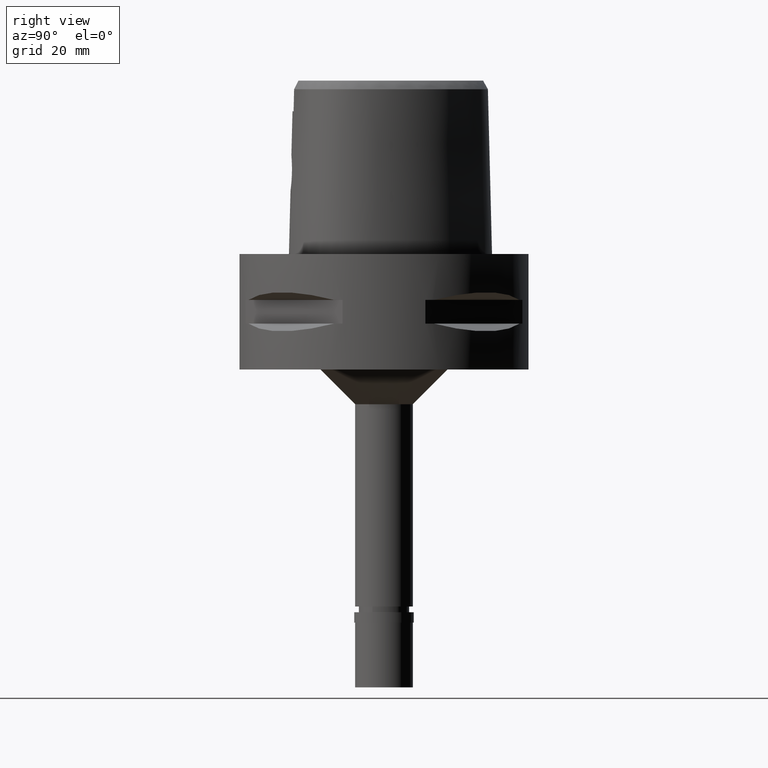
[diagram: clean part render]
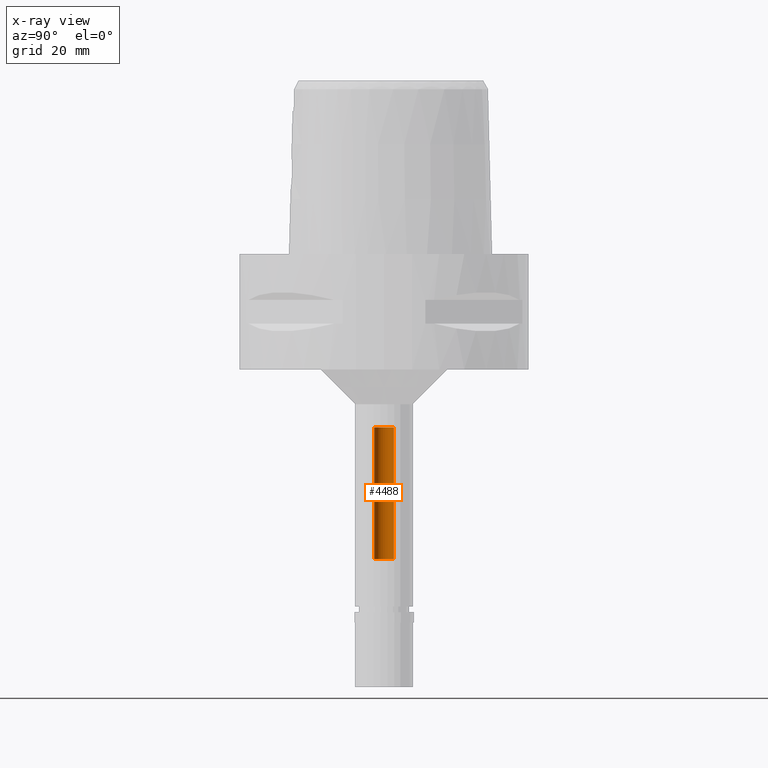
[diagram: x-ray — body ghosted, one internal face saturated and labeled with its STEP entity id]
A machine part, right view, then the same camera in x-ray: the body is ghosted and one INTERNAL B-rep face — a face not visible from any outside direction — is saturated and labeled: STEP entity #4488.
In plain terms, the highlighted cylindrical surface (edge-blend (fillet) strip) has radius 1.7 mm, axis along (0, 0, -1).
Its self-contained STEP definition (entity closure, byte-faithful):
#10 = CARTESIAN_POINT ( 'NONE',  ( 0.0000000000000000000, -1.699999999999999956, -52.79999999999999716 ) ) ;
#11 = ORIENTED_EDGE ( 'NONE', *, *, #773, .T. ) ;
#221 = FACE_OUTER_BOUND ( 'NONE', #4327, .T. ) ;
#374 = LINE ( 'NONE', #10, #4174 ) ;
#380 = DIRECTION ( 'NONE',  ( 0.0000000000000000000, 0.0000000000000000000, 1.000000000000000000 ) ) ;
#410 = AXIS2_PLACEMENT_3D ( 'NONE', #3176, #380, #4186 ) ;
#585 = CARTESIAN_POINT ( 'NONE',  ( 0.0000000000000000000, 1.699999999999999956, -52.79999999999999716 ) ) ;
#644 = CARTESIAN_POINT ( 'NONE',  ( 0.0000000000000000000, 1.699999999999999956, -52.79999999999999716 ) ) ;
#663 = CYLINDRICAL_SURFACE ( 'NONE', #3408, 1.699999999999999956 ) ;
#720 = EDGE_CURVE ( 'NONE', #3317, #2343, #374, .T. ) ;
#773 = EDGE_CURVE ( 'NONE', #3317, #4383, #1122, .T. ) ;
#1122 = CIRCLE ( 'NONE', #3863, 1.699999999999999956 ) ;
#1430 = DIRECTION ( 'NONE',  ( 0.0000000000000000000, -1.000000000000000000, 0.0000000000000000000 ) ) ;
#1553 = CARTESIAN_POINT ( 'NONE',  ( 0.0000000000000000000, -1.699999999999999956, -52.79999999999999716 ) ) ;
#1695 = CARTESIAN_POINT ( 'NONE',  ( 0.0000000000000000000, 1.699999999999999956, -30.00000000000000000 ) ) ;
#1777 = EDGE_CURVE ( 'NONE', #4383, #3653, #3672, .T. ) ;
#2262 = DIRECTION ( 'NONE',  ( 0.0000000000000000000, -1.000000000000000000, 0.0000000000000000000 ) ) ;
#2277 = CARTESIAN_POINT ( 'NONE',  ( 0.0000000000000000000, -1.699999999999999956, -30.00000000000000000 ) ) ;
#2343 = VERTEX_POINT ( 'NONE', #2277 ) ;
#2650 = DIRECTION ( 'NONE',  ( 0.0000000000000000000, 0.0000000000000000000, -1.000000000000000000 ) ) ;
#2718 = EDGE_CURVE ( 'NONE', #3653, #2343, #3630, .T. ) ;
#2949 = DIRECTION ( 'NONE',  ( 0.0000000000000000000, 0.0000000000000000000, -1.000000000000000000 ) ) ;
#3176 = CARTESIAN_POINT ( 'NONE',  ( 0.0000000000000000000, 1.268305457536999868E-14, -30.00000000000000000 ) ) ;
#3293 = DIRECTION ( 'NONE',  ( 0.0000000000000000000, 0.0000000000000000000, 1.000000000000000000 ) ) ;
#3317 = VERTEX_POINT ( 'NONE', #1553 ) ;
#3408 = AXIS2_PLACEMENT_3D ( 'NONE', #4811, #2949, #1430 ) ;
#3570 = ORIENTED_EDGE ( 'NONE', *, *, #720, .F. ) ;
#3630 = CIRCLE ( 'NONE', #410, 1.699999999999999956 ) ;
#3653 = VERTEX_POINT ( 'NONE', #1695 ) ;
#3672 = LINE ( 'NONE', #644, #4580 ) ;
#3863 = AXIS2_PLACEMENT_3D ( 'NONE', #4845, #2650, #2262 ) ;
#4174 = VECTOR ( 'NONE', #4551, 1000.000000000000000 ) ;
#4186 = DIRECTION ( 'NONE',  ( 0.0000000000000000000, 1.000000000000000000, 0.0000000000000000000 ) ) ;
#4327 = EDGE_LOOP ( 'NONE', ( #4697, #3570, #11, #4750 ) ) ;
#4383 = VERTEX_POINT ( 'NONE', #585 ) ;
#4488 = ADVANCED_FACE ( 'NONE', ( #221 ), #663, .F. ) ;
#4551 = DIRECTION ( 'NONE',  ( 0.0000000000000000000, 0.0000000000000000000, 1.000000000000000000 ) ) ;
#4580 = VECTOR ( 'NONE', #3293, 1000.000000000000000 ) ;
#4697 = ORIENTED_EDGE ( 'NONE', *, *, #2718, .T. ) ;
#4750 = ORIENTED_EDGE ( 'NONE', *, *, #1777, .T. ) ;
#4811 = CARTESIAN_POINT ( 'NONE',  ( 0.0000000000000000000, 1.268305457536999868E-14, 3.564999999999999947 ) ) ;
#4845 = CARTESIAN_POINT ( 'NONE',  ( 0.0000000000000000000, 1.268305457536999868E-14, -52.79999999999999716 ) ) ;